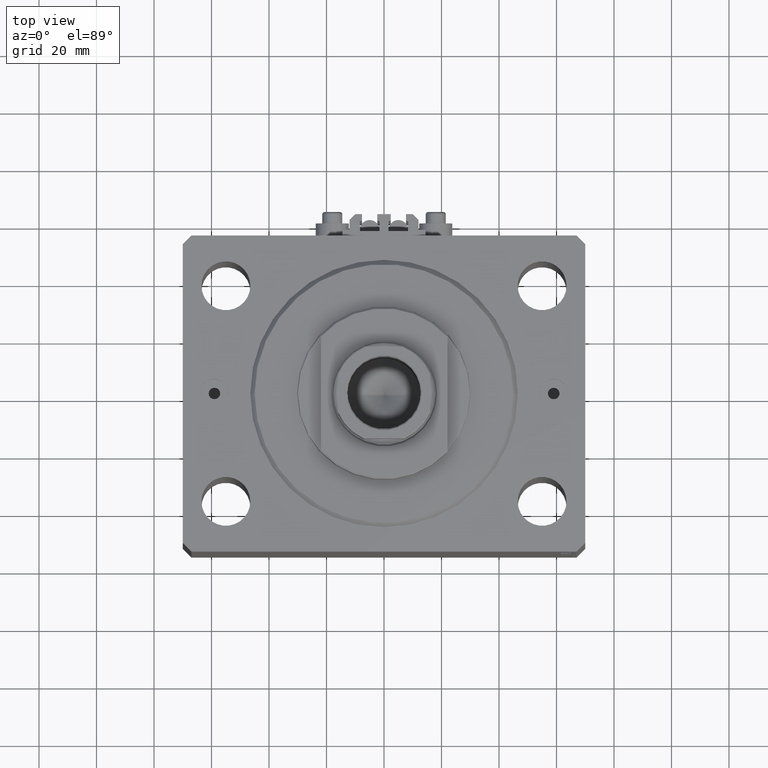
[diagram: clean part render]
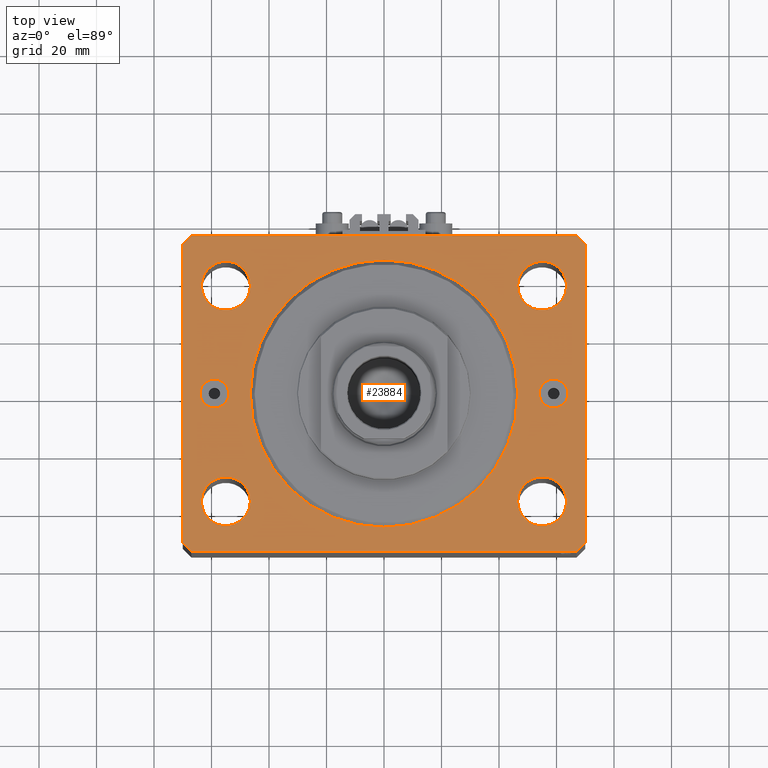
[diagram: same view with one face highlighted and labeled with its STEP entity id]
A machine part, top view. The second image highlights one B-rep face of the part: STEP entity #23884.
In plain terms, the highlighted planar face has unit normal (0, 0, 1).
Its self-contained STEP definition (entity closure, byte-faithful):
#118 = VERTEX_POINT ( 'NONE', #27571 ) ;
#293 = ORIENTED_EDGE ( 'NONE', *, *, #18339, .T. ) ;
#805 = CARTESIAN_POINT ( 'NONE',  ( -63.50000000000000000, 37.50000000000000000, 0.000000000000000000 ) ) ;
#972 = ORIENTED_EDGE ( 'NONE', *, *, #32543, .F. ) ;
#1094 = CIRCLE ( 'NONE', #4211, 8.500000000000000000 ) ;
#1445 = CARTESIAN_POINT ( 'NONE',  ( -54.99999999999998579, -37.50000000000000711, 0.000000000000000000 ) ) ;
#1730 = AXIS2_PLACEMENT_3D ( 'NONE', #38172, #30651, #19238 ) ;
#1889 = FACE_BOUND ( 'NONE', #34111, .T. ) ;
#2492 = CARTESIAN_POINT ( 'NONE',  ( -67.00000000000000000, 55.00000000000000000, 0.000000000000000000 ) ) ;
#2541 = VERTEX_POINT ( 'NONE', #44475 ) ;
#2774 = DIRECTION ( 'NONE',  ( 0.000000000000000000, -0.000000000000000000, -1.000000000000000000 ) ) ;
#2993 = CARTESIAN_POINT ( 'NONE',  ( 53.99999999999999289, 6.123233995736770227E-16, 0.000000000000000000 ) ) ;
#3333 = CARTESIAN_POINT ( 'NONE',  ( 67.00000000000000000, -55.00000000000000000, 0.000000000000000000 ) ) ;
#3650 = ORIENTED_EDGE ( 'NONE', *, *, #20539, .T. ) ;
#4184 = CARTESIAN_POINT ( 'NONE',  ( -59.00000000000000000, 0.000000000000000000, 0.000000000000000000 ) ) ;
#4211 = AXIS2_PLACEMENT_3D ( 'NONE', #15220, #37560, #33914 ) ;
#4224 = CARTESIAN_POINT ( 'NONE',  ( -46.50000000000000000, 37.50000000000000000, 0.000000000000000000 ) ) ;
#4429 = AXIS2_PLACEMENT_3D ( 'NONE', #4184, #41331, #30155 ) ;
#4530 = DIRECTION ( 'NONE',  ( 1.000000000000000000, 0.000000000000000000, 0.000000000000000000 ) ) ;
#4702 = EDGE_CURVE ( 'NONE', #16306, #10415, #37058, .T. ) ;
#5361 = CIRCLE ( 'NONE', #37884, 8.500000000000000000 ) ;
#5592 = DIRECTION ( 'NONE',  ( 0.000000000000000000, 0.000000000000000000, 1.000000000000000000 ) ) ;
#5651 = EDGE_CURVE ( 'NONE', #11966, #47262, #8415, .T. ) ;
#5660 = ORIENTED_EDGE ( 'NONE', *, *, #21630, .F. ) ;
#5848 = DIRECTION ( 'NONE',  ( -0.7071067811865361374, 0.7071067811865588970, 0.000000000000000000 ) ) ;
#6002 = CARTESIAN_POINT ( 'NONE',  ( -46.50000000000000000, 5.694607616035192278E-15, 0.000000000000000000 ) ) ;
#6171 = EDGE_LOOP ( 'NONE', ( #39373, #9038, #32739, #28692, #30926, #293, #13092, #3650 ) ) ;
#6535 = ORIENTED_EDGE ( 'NONE', *, *, #34187, .F. ) ;
#6958 = VERTEX_POINT ( 'NONE', #805 ) ;
#7115 = EDGE_CURVE ( 'NONE', #12941, #35366, #40107, .T. ) ;
#7326 = DIRECTION ( 'NONE',  ( 1.000000000000000000, 0.000000000000000000, 0.000000000000000000 ) ) ;
#7552 = CARTESIAN_POINT ( 'NONE',  ( 54.99999999999998579, -37.50000000000000711, 0.000000000000000000 ) ) ;
#7772 = CARTESIAN_POINT ( 'NONE',  ( 64.00000000000000000, 0.000000000000000000, 0.000000000000000000 ) ) ;
#7823 = VERTEX_POINT ( 'NONE', #4224 ) ;
#8308 = CIRCLE ( 'NONE', #26148, 5.000000000000004441 ) ;
#8376 = CARTESIAN_POINT ( 'NONE',  ( 46.50000000000000000, 0.000000000000000000, 0.000000000000000000 ) ) ;
#8415 = CIRCLE ( 'NONE', #13868, 5.000000000000004441 ) ;
#8614 = EDGE_LOOP ( 'NONE', ( #6535, #972 ) ) ;
#8655 = DIRECTION ( 'NONE',  ( 0.000000000000000000, 0.000000000000000000, 1.000000000000000000 ) ) ;
#8692 = CIRCLE ( 'NONE', #1730, 46.50000000000000000 ) ;
#8792 = VERTEX_POINT ( 'NONE', #6002 ) ;
#8818 = DIRECTION ( 'NONE',  ( -0.7071067811865483499, -0.7071067811865466846, 0.000000000000000000 ) ) ;
#8943 = VERTEX_POINT ( 'NONE', #8376 ) ;
#9038 = ORIENTED_EDGE ( 'NONE', *, *, #33282, .T. ) ;
#9087 = EDGE_CURVE ( 'NONE', #44556, #13522, #18763, .T. ) ;
#9918 = VERTEX_POINT ( 'NONE', #23930 ) ;
#10415 = VERTEX_POINT ( 'NONE', #38191 ) ;
#10636 = DIRECTION ( 'NONE',  ( 0.000000000000000000, 0.000000000000000000, 1.000000000000000000 ) ) ;
#11042 = VERTEX_POINT ( 'NONE', #35810 ) ;
#11043 = VECTOR ( 'NONE', #5848, 1000.000000000000114 ) ;
#11385 = ORIENTED_EDGE ( 'NONE', *, *, #19067, .F. ) ;
#11966 = VERTEX_POINT ( 'NONE', #7772 ) ;
#12095 = ORIENTED_EDGE ( 'NONE', *, *, #45214, .F. ) ;
#12819 = CARTESIAN_POINT ( 'NONE',  ( 0.000000000000000000, 0.000000000000000000, 0.000000000000000000 ) ) ;
#12941 = VERTEX_POINT ( 'NONE', #32990 ) ;
#12974 = CIRCLE ( 'NONE', #4429, 4.999999999999997335 ) ;
#13055 = FACE_BOUND ( 'NONE', #28281, .T. ) ;
#13092 = ORIENTED_EDGE ( 'NONE', *, *, #44610, .T. ) ;
#13522 = VERTEX_POINT ( 'NONE', #2492 ) ;
#13630 = VERTEX_POINT ( 'NONE', #26228 ) ;
#13848 = VERTEX_POINT ( 'NONE', #43451 ) ;
#13868 = AXIS2_PLACEMENT_3D ( 'NONE', #30364, #44692, #33047 ) ;
#14472 = CARTESIAN_POINT ( 'NONE',  ( -70.00000000000000000, -52.00000000000000711, 0.000000000000000000 ) ) ;
#14881 = DIRECTION ( 'NONE',  ( -1.000000000000000000, 5.178279032766565695E-17, 0.000000000000000000 ) ) ;
#15220 = CARTESIAN_POINT ( 'NONE',  ( -55.00000000000000000, 37.50000000000000000, 0.000000000000000000 ) ) ;
#15517 = ORIENTED_EDGE ( 'NONE', *, *, #19730, .F. ) ;
#15556 = DIRECTION ( 'NONE',  ( 0.000000000000000000, 0.000000000000000000, 1.000000000000000000 ) ) ;
#16245 = EDGE_LOOP ( 'NONE', ( #26995, #11385 ) ) ;
#16306 = VERTEX_POINT ( 'NONE', #41189 ) ;
#16457 = FACE_BOUND ( 'NONE', #16245, .T. ) ;
#16466 = AXIS2_PLACEMENT_3D ( 'NONE', #1445, #5592, #46611 ) ;
#16729 = DIRECTION ( 'NONE',  ( 0.000000000000000000, 0.000000000000000000, 1.000000000000000000 ) ) ;
#16779 = DIRECTION ( 'NONE',  ( 1.000000000000000000, 0.000000000000000000, 0.000000000000000000 ) ) ;
#16875 = EDGE_LOOP ( 'NONE', ( #37481, #12095 ) ) ;
#16879 = LINE ( 'NONE', #21244, #22924 ) ;
#17173 = ORIENTED_EDGE ( 'NONE', *, *, #18661, .F. ) ;
#17200 = DIRECTION ( 'NONE',  ( 1.000000000000000000, 0.000000000000000000, 0.000000000000000000 ) ) ;
#17361 = DIRECTION ( 'NONE',  ( 0.7071067811865483499, -0.7071067811865466846, 0.000000000000000000 ) ) ;
#17432 = EDGE_CURVE ( 'NONE', #13848, #32989, #31153, .T. ) ;
#17547 = DIRECTION ( 'NONE',  ( 0.000000000000000000, 0.000000000000000000, 1.000000000000000000 ) ) ;
#18287 = EDGE_LOOP ( 'NONE', ( #15517, #5660 ) ) ;
#18339 = EDGE_CURVE ( 'NONE', #44739, #13630, #39545, .T. ) ;
#18661 = EDGE_CURVE ( 'NONE', #8792, #8943, #8692, .T. ) ;
#18763 = LINE ( 'NONE', #25113, #37972 ) ;
#18927 = ORIENTED_EDGE ( 'NONE', *, *, #29190, .T. ) ;
#19067 = EDGE_CURVE ( 'NONE', #32989, #13848, #24191, .T. ) ;
#19238 = DIRECTION ( 'NONE',  ( 1.000000000000000000, 0.000000000000000000, 0.000000000000000000 ) ) ;
#19730 = EDGE_CURVE ( 'NONE', #11042, #25256, #44387, .T. ) ;
#20416 = CARTESIAN_POINT ( 'NONE',  ( -55.00000000000000000, 37.50000000000000000, 0.000000000000000000 ) ) ;
#20539 = EDGE_CURVE ( 'NONE', #28447, #44556, #46396, .T. ) ;
#20687 = LINE ( 'NONE', #35491, #37079 ) ;
#21244 = CARTESIAN_POINT ( 'NONE',  ( -70.00000000000000000, -52.00000000000000711, 0.000000000000000000 ) ) ;
#21630 = EDGE_CURVE ( 'NONE', #25256, #11042, #33563, .T. ) ;
#21795 = DIRECTION ( 'NONE',  ( 1.000000000000000000, 0.000000000000000000, 0.000000000000000000 ) ) ;
#21877 = ORIENTED_EDGE ( 'NONE', *, *, #4702, .F. ) ;
#21892 = CARTESIAN_POINT ( 'NONE',  ( 54.99999999999998579, -37.50000000000000711, 0.000000000000000000 ) ) ;
#21939 = CARTESIAN_POINT ( 'NONE',  ( -63.49999999999998579, -37.50000000000000711, 0.000000000000000000 ) ) ;
#22749 = CARTESIAN_POINT ( 'NONE',  ( -59.00000000000000000, 0.000000000000000000, 0.000000000000000000 ) ) ;
#22924 = VECTOR ( 'NONE', #17361, 1000.000000000000000 ) ;
#23695 = DIRECTION ( 'NONE',  ( 0.000000000000000000, 0.000000000000000000, 1.000000000000000000 ) ) ;
#23755 = CARTESIAN_POINT ( 'NONE',  ( 70.00000000000000000, -52.00000000000000711, 0.000000000000000000 ) ) ;
#23884 = ADVANCED_FACE ( 'NONE', ( #27620, #46082, #35141, #34896, #16457, #1889, #46799, #13055 ), #35373, .T. ) ;
#23930 = CARTESIAN_POINT ( 'NONE',  ( 63.49999999999998579, -37.50000000000000711, 0.000000000000000000 ) ) ;
#24191 = CIRCLE ( 'NONE', #16466, 8.500000000000000000 ) ;
#24219 = DIRECTION ( 'NONE',  ( 1.000000000000000000, 0.000000000000000000, -0.000000000000000000 ) ) ;
#24394 = VECTOR ( 'NONE', #41740, 1000.000000000000000 ) ;
#24718 = EDGE_CURVE ( 'NONE', #7823, #6958, #1094, .T. ) ;
#24878 = EDGE_CURVE ( 'NONE', #2541, #44739, #44907, .T. ) ;
#25049 = AXIS2_PLACEMENT_3D ( 'NONE', #39061, #16729, #17200 ) ;
#25103 = CARTESIAN_POINT ( 'NONE',  ( 59.00000000000000000, 0.000000000000000000, 0.000000000000000000 ) ) ;
#25113 = CARTESIAN_POINT ( 'NONE',  ( 67.00000000000058265, 54.99999999999999289, 0.000000000000000000 ) ) ;
#25256 = VERTEX_POINT ( 'NONE', #27609 ) ;
#25789 = AXIS2_PLACEMENT_3D ( 'NONE', #20416, #35219, #16779 ) ;
#25955 = ORIENTED_EDGE ( 'NONE', *, *, #28645, .F. ) ;
#26148 = AXIS2_PLACEMENT_3D ( 'NONE', #25103, #2774, #43080 ) ;
#26228 = CARTESIAN_POINT ( 'NONE',  ( 70.00000000000000000, -52.00000000000000711, 0.000000000000000000 ) ) ;
#26995 = ORIENTED_EDGE ( 'NONE', *, *, #17432, .F. ) ;
#27078 = DIRECTION ( 'NONE',  ( 1.000000000000000000, 0.000000000000000000, 0.000000000000000000 ) ) ;
#27513 = EDGE_CURVE ( 'NONE', #35366, #2541, #16879, .T. ) ;
#27571 = CARTESIAN_POINT ( 'NONE',  ( 46.49999999999998579, -37.50000000000000711, 0.000000000000000000 ) ) ;
#27609 = CARTESIAN_POINT ( 'NONE',  ( 46.50000000000001421, 37.49999999999998579, 0.000000000000000000 ) ) ;
#27620 = FACE_OUTER_BOUND ( 'NONE', #6171, .T. ) ;
#28281 = EDGE_LOOP ( 'NONE', ( #28899, #18927 ) ) ;
#28447 = VERTEX_POINT ( 'NONE', #43549 ) ;
#28645 = EDGE_CURVE ( 'NONE', #10415, #16306, #12974, .T. ) ;
#28692 = ORIENTED_EDGE ( 'NONE', *, *, #27513, .T. ) ;
#28899 = ORIENTED_EDGE ( 'NONE', *, *, #5651, .T. ) ;
#29190 = EDGE_CURVE ( 'NONE', #47262, #11966, #8308, .T. ) ;
#29660 = CARTESIAN_POINT ( 'NONE',  ( -70.00000000000000000, 52.00000000000000711, 0.000000000000000000 ) ) ;
#30155 = DIRECTION ( 'NONE',  ( 1.000000000000000000, 0.000000000000000000, 0.000000000000000000 ) ) ;
#30364 = CARTESIAN_POINT ( 'NONE',  ( 59.00000000000000000, 0.000000000000000000, 0.000000000000000000 ) ) ;
#30584 = CARTESIAN_POINT ( 'NONE',  ( -67.00000000000000000, -55.00000000000000000, 0.000000000000000000 ) ) ;
#30651 = DIRECTION ( 'NONE',  ( 0.000000000000000000, 0.000000000000000000, 1.000000000000000000 ) ) ;
#30926 = ORIENTED_EDGE ( 'NONE', *, *, #24878, .T. ) ;
#31153 = CIRCLE ( 'NONE', #35030, 8.500000000000000000 ) ;
#31331 = AXIS2_PLACEMENT_3D ( 'NONE', #12819, #38784, #24219 ) ;
#32389 = EDGE_CURVE ( 'NONE', #8943, #8792, #47919, .T. ) ;
#32543 = EDGE_CURVE ( 'NONE', #118, #9918, #45597, .T. ) ;
#32739 = ORIENTED_EDGE ( 'NONE', *, *, #7115, .T. ) ;
#32989 = VERTEX_POINT ( 'NONE', #21939 ) ;
#32990 = CARTESIAN_POINT ( 'NONE',  ( -70.00000000000000000, 52.00000000000000711, 0.000000000000000000 ) ) ;
#33047 = DIRECTION ( 'NONE',  ( 1.000000000000000000, 0.000000000000000000, 0.000000000000000000 ) ) ;
#33252 = VECTOR ( 'NONE', #43525, 1000.000000000000000 ) ;
#33282 = EDGE_CURVE ( 'NONE', #13522, #12941, #20687, .T. ) ;
#33563 = CIRCLE ( 'NONE', #25049, 8.499999999999992895 ) ;
#33768 = DIRECTION ( 'NONE',  ( 1.000000000000000000, 0.000000000000000000, 0.000000000000000000 ) ) ;
#33914 = DIRECTION ( 'NONE',  ( 1.000000000000000000, 0.000000000000000000, 0.000000000000000000 ) ) ;
#34111 = EDGE_LOOP ( 'NONE', ( #39614, #17173 ) ) ;
#34187 = EDGE_CURVE ( 'NONE', #9918, #118, #5361, .T. ) ;
#34896 = FACE_BOUND ( 'NONE', #8614, .T. ) ;
#35030 = AXIS2_PLACEMENT_3D ( 'NONE', #40486, #10636, #21795 ) ;
#35141 = FACE_BOUND ( 'NONE', #18287, .T. ) ;
#35219 = DIRECTION ( 'NONE',  ( 0.000000000000000000, 0.000000000000000000, 1.000000000000000000 ) ) ;
#35366 = VERTEX_POINT ( 'NONE', #14472 ) ;
#35373 = PLANE ( 'NONE',  #31331 ) ;
#35491 = CARTESIAN_POINT ( 'NONE',  ( -67.00000000000000000, 55.00000000000000000, 0.000000000000000000 ) ) ;
#35519 = AXIS2_PLACEMENT_3D ( 'NONE', #22749, #8655, #4530 ) ;
#35810 = CARTESIAN_POINT ( 'NONE',  ( 63.50000000000000000, 37.49999999999998579, 0.000000000000000000 ) ) ;
#35906 = CARTESIAN_POINT ( 'NONE',  ( 67.00000000000000000, -55.00000000000000000, 0.000000000000000000 ) ) ;
#37058 = CIRCLE ( 'NONE', #35519, 4.999999999999997335 ) ;
#37079 = VECTOR ( 'NONE', #8818, 1000.000000000000000 ) ;
#37343 = CARTESIAN_POINT ( 'NONE',  ( 67.00000000000058265, 54.99999999999999289, 0.000000000000000000 ) ) ;
#37481 = ORIENTED_EDGE ( 'NONE', *, *, #24718, .F. ) ;
#37560 = DIRECTION ( 'NONE',  ( 0.000000000000000000, 0.000000000000000000, 1.000000000000000000 ) ) ;
#37884 = AXIS2_PLACEMENT_3D ( 'NONE', #7552, #15556, #33768 ) ;
#37972 = VECTOR ( 'NONE', #14881, 1000.000000000000000 ) ;
#38144 = VECTOR ( 'NONE', #43431, 1000.000000000000000 ) ;
#38172 = CARTESIAN_POINT ( 'NONE',  ( 0.000000000000000000, 0.000000000000000000, 0.000000000000000000 ) ) ;
#38191 = CARTESIAN_POINT ( 'NONE',  ( -54.00000000000000000, 0.000000000000000000, 0.000000000000000000 ) ) ;
#38319 = LINE ( 'NONE', #23755, #39017 ) ;
#38784 = DIRECTION ( 'NONE',  ( 0.000000000000000000, 0.000000000000000000, 1.000000000000000000 ) ) ;
#39017 = VECTOR ( 'NONE', #42446, 1000.000000000000000 ) ;
#39061 = CARTESIAN_POINT ( 'NONE',  ( 55.00000000000000711, 37.49999999999998579, 0.000000000000000000 ) ) ;
#39107 = CARTESIAN_POINT ( 'NONE',  ( 70.00000000000054001, 51.99999999999995026, 0.000000000000000000 ) ) ;
#39373 = ORIENTED_EDGE ( 'NONE', *, *, #9087, .T. ) ;
#39545 = LINE ( 'NONE', #35906, #38144 ) ;
#39614 = ORIENTED_EDGE ( 'NONE', *, *, #32389, .F. ) ;
#40107 = LINE ( 'NONE', #29660, #33252 ) ;
#40486 = CARTESIAN_POINT ( 'NONE',  ( -54.99999999999998579, -37.50000000000000711, 0.000000000000000000 ) ) ;
#41189 = CARTESIAN_POINT ( 'NONE',  ( -64.00000000000000000, 6.123233995736754449E-16, 0.000000000000000000 ) ) ;
#41331 = DIRECTION ( 'NONE',  ( 0.000000000000000000, 0.000000000000000000, 1.000000000000000000 ) ) ;
#41703 = AXIS2_PLACEMENT_3D ( 'NONE', #21892, #17547, #7326 ) ;
#41740 = DIRECTION ( 'NONE',  ( 1.000000000000000000, 0.000000000000000000, 0.000000000000000000 ) ) ;
#41896 = CARTESIAN_POINT ( 'NONE',  ( 55.00000000000000711, 37.49999999999998579, 0.000000000000000000 ) ) ;
#42446 = DIRECTION ( 'NONE',  ( 5.070730160547592760E-15, 1.000000000000000000, 0.000000000000000000 ) ) ;
#43080 = DIRECTION ( 'NONE',  ( 1.000000000000000000, 0.000000000000000000, 0.000000000000000000 ) ) ;
#43431 = DIRECTION ( 'NONE',  ( 0.7071067811865483499, 0.7071067811865466846, 0.000000000000000000 ) ) ;
#43451 = CARTESIAN_POINT ( 'NONE',  ( -46.49999999999998579, -37.50000000000000711, 0.000000000000000000 ) ) ;
#43525 = DIRECTION ( 'NONE',  ( 0.000000000000000000, -1.000000000000000000, 0.000000000000000000 ) ) ;
#43549 = CARTESIAN_POINT ( 'NONE',  ( 70.00000000000054001, 51.99999999999995026, 0.000000000000000000 ) ) ;
#44034 = AXIS2_PLACEMENT_3D ( 'NONE', #47767, #44827, #44588 ) ;
#44387 = CIRCLE ( 'NONE', #45958, 8.499999999999992895 ) ;
#44475 = CARTESIAN_POINT ( 'NONE',  ( -67.00000000000000000, -55.00000000000000000, 0.000000000000000000 ) ) ;
#44556 = VERTEX_POINT ( 'NONE', #37343 ) ;
#44588 = DIRECTION ( 'NONE',  ( 1.000000000000000000, 0.000000000000000000, 0.000000000000000000 ) ) ;
#44610 = EDGE_CURVE ( 'NONE', #13630, #28447, #38319, .T. ) ;
#44692 = DIRECTION ( 'NONE',  ( 0.000000000000000000, -0.000000000000000000, -1.000000000000000000 ) ) ;
#44739 = VERTEX_POINT ( 'NONE', #3333 ) ;
#44827 = DIRECTION ( 'NONE',  ( 0.000000000000000000, 0.000000000000000000, 1.000000000000000000 ) ) ;
#44907 = LINE ( 'NONE', #30584, #24394 ) ;
#45214 = EDGE_CURVE ( 'NONE', #6958, #7823, #46750, .T. ) ;
#45597 = CIRCLE ( 'NONE', #41703, 8.500000000000000000 ) ;
#45958 = AXIS2_PLACEMENT_3D ( 'NONE', #41896, #23695, #27078 ) ;
#46082 = FACE_BOUND ( 'NONE', #16875, .T. ) ;
#46396 = LINE ( 'NONE', #39107, #11043 ) ;
#46611 = DIRECTION ( 'NONE',  ( 1.000000000000000000, 0.000000000000000000, 0.000000000000000000 ) ) ;
#46750 = CIRCLE ( 'NONE', #25789, 8.500000000000000000 ) ;
#46799 = FACE_BOUND ( 'NONE', #47733, .T. ) ;
#47262 = VERTEX_POINT ( 'NONE', #2993 ) ;
#47733 = EDGE_LOOP ( 'NONE', ( #25955, #21877 ) ) ;
#47767 = CARTESIAN_POINT ( 'NONE',  ( 0.000000000000000000, 0.000000000000000000, 0.000000000000000000 ) ) ;
#47919 = CIRCLE ( 'NONE', #44034, 46.50000000000000000 ) ;